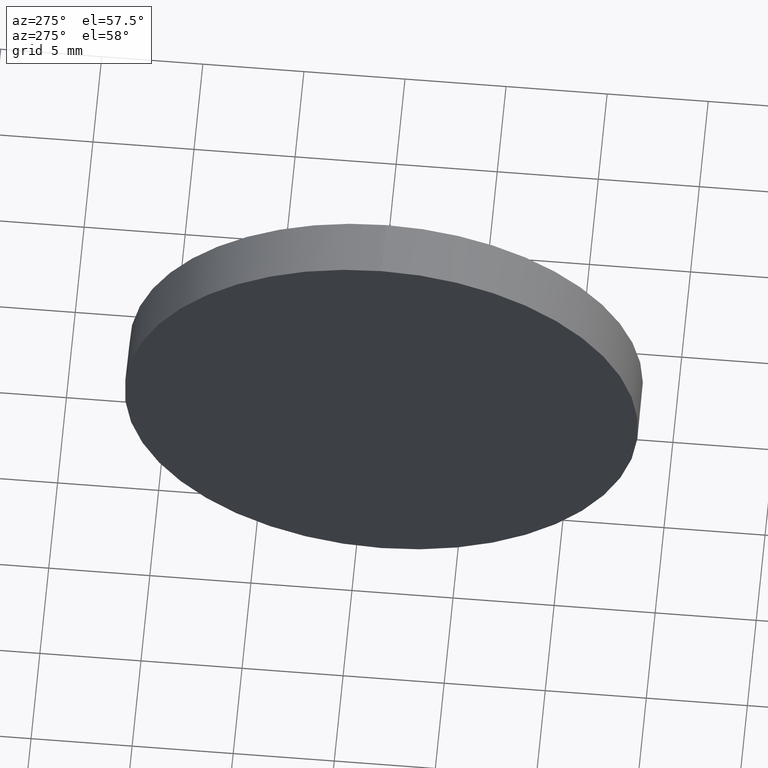
[diagram: clean part render]
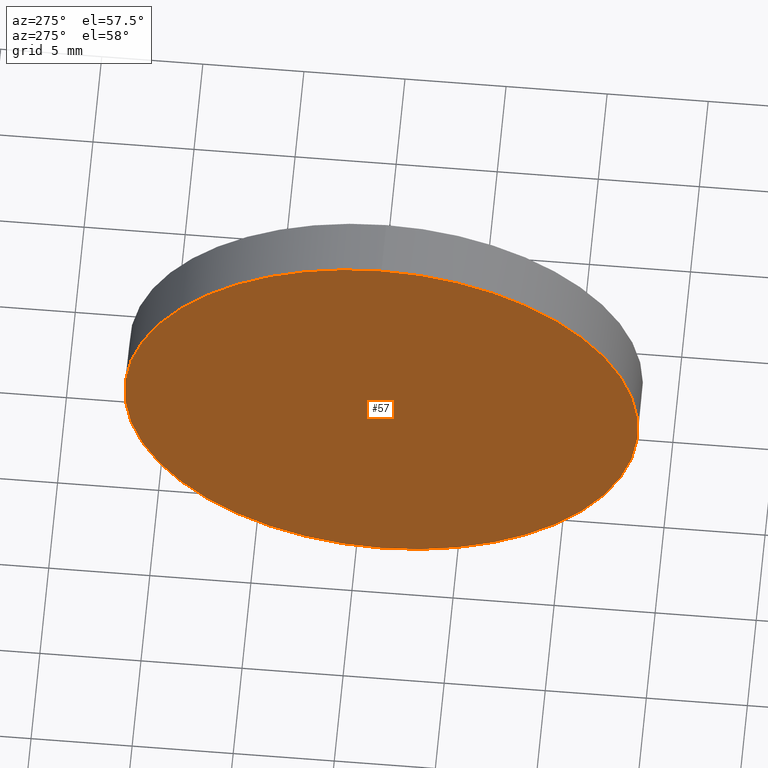
[diagram: same view with one face highlighted and labeled with its STEP entity id]
A machine part, auxiliary view. The second image highlights one B-rep face of the part: STEP entity #57.
In plain terms, the highlighted planar face has unit normal (1, 0, 0).
Its self-contained STEP definition (entity closure, byte-faithful):
#30 = EDGE_CURVE ( 'NONE', #127, #148, #39, .T. ) ;
#39 = CIRCLE ( 'NONE', #145, 12.70000000000000300 ) ;
#44 = PLANE ( 'NONE',  #124 ) ;
#46 = ORIENTED_EDGE ( 'NONE', *, *, #50, .T. ) ;
#50 = EDGE_CURVE ( 'NONE', #148, #127, #168, .T. ) ;
#57 = ADVANCED_FACE ( 'NONE', ( #183 ), #44, .F. ) ;
#65 = DIRECTION ( 'NONE',  ( -1.000000000000000000, -0.0000000000000000000, -0.0000000000000000000 ) ) ;
#76 = CARTESIAN_POINT ( 'NONE',  ( 692.2543296014569000, 68.74304805119973600, 0.0000000000000000000 ) ) ;
#101 = ORIENTED_EDGE ( 'NONE', *, *, #30, .T. ) ;
#102 = DIRECTION ( 'NONE',  ( 0.0000000000000000000, 0.0000000000000000000, 1.000000000000000000 ) ) ;
#109 = DIRECTION ( 'NONE',  ( 1.000000000000000000, 0.0000000000000000000, 0.0000000000000000000 ) ) ;
#111 = DIRECTION ( 'NONE',  ( 0.0000000000000000000, 0.0000000000000000000, -1.000000000000000000 ) ) ;
#124 = AXIS2_PLACEMENT_3D ( 'NONE', #150, #109, #111 ) ;
#127 = VERTEX_POINT ( 'NONE', #155 ) ;
#137 = CARTESIAN_POINT ( 'NONE',  ( 692.2543296014569000, 68.74304805119973600, -12.70000000000000300 ) ) ;
#140 = DIRECTION ( 'NONE',  ( -1.000000000000000000, -0.0000000000000000000, -0.0000000000000000000 ) ) ;
#145 = AXIS2_PLACEMENT_3D ( 'NONE', #178, #140, #102 ) ;
#148 = VERTEX_POINT ( 'NONE', #137 ) ;
#150 = CARTESIAN_POINT ( 'NONE',  ( 692.2543296014569000, 68.74304805119973600, 0.0000000000000000000 ) ) ;
#155 = CARTESIAN_POINT ( 'NONE',  ( 692.2543296014569000, 68.74304805119973600, 12.70000000000000300 ) ) ;
#156 = EDGE_LOOP ( 'NONE', ( #101, #46 ) ) ;
#158 = AXIS2_PLACEMENT_3D ( 'NONE', #76, #65, #181 ) ;
#168 = CIRCLE ( 'NONE', #158, 12.70000000000000300 ) ;
#178 = CARTESIAN_POINT ( 'NONE',  ( 692.2543296014569000, 68.74304805119973600, 0.0000000000000000000 ) ) ;
#181 = DIRECTION ( 'NONE',  ( 0.0000000000000000000, 0.0000000000000000000, 1.000000000000000000 ) ) ;
#183 = FACE_OUTER_BOUND ( 'NONE', #156, .T. ) ;